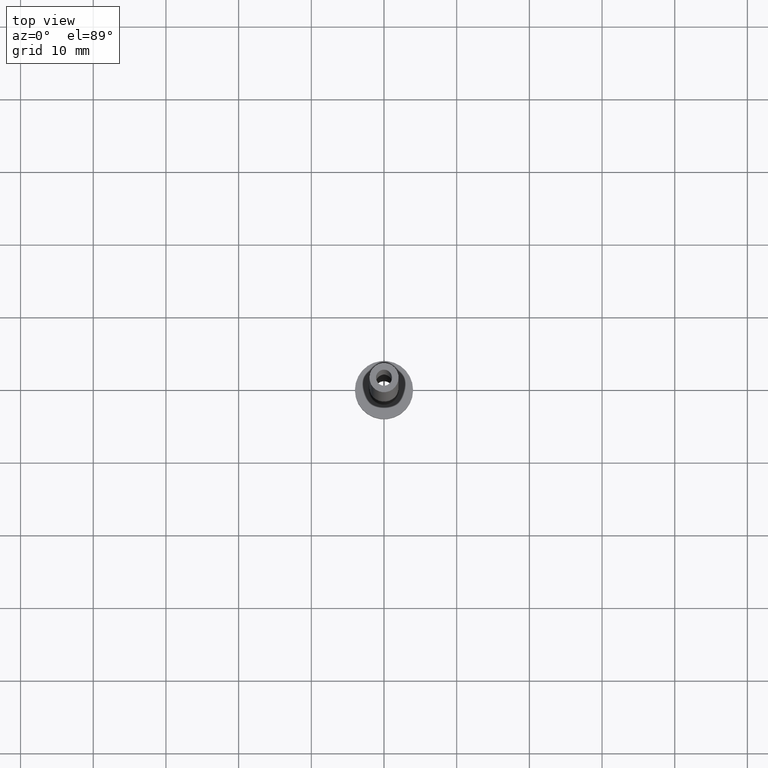
[diagram: clean part render]
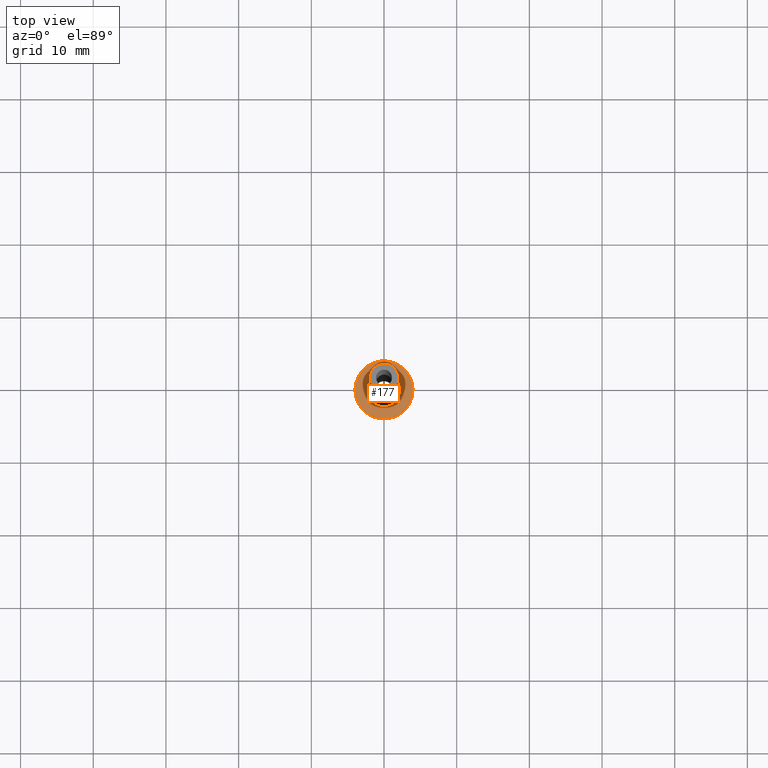
[diagram: same view with one face highlighted and labeled with its STEP entity id]
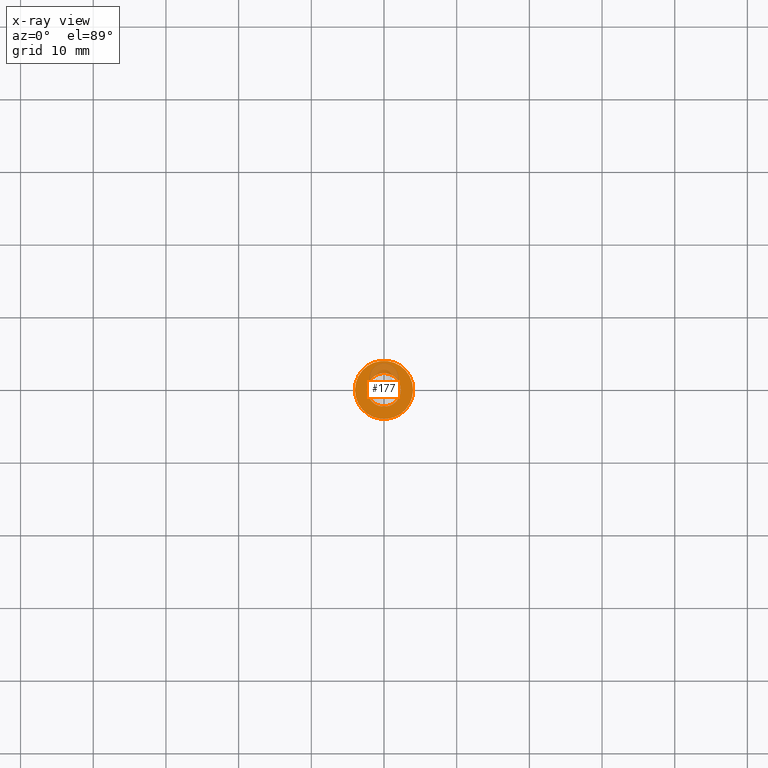
[diagram: x-ray of the same camera — body ghosted, the highlighted face saturated]
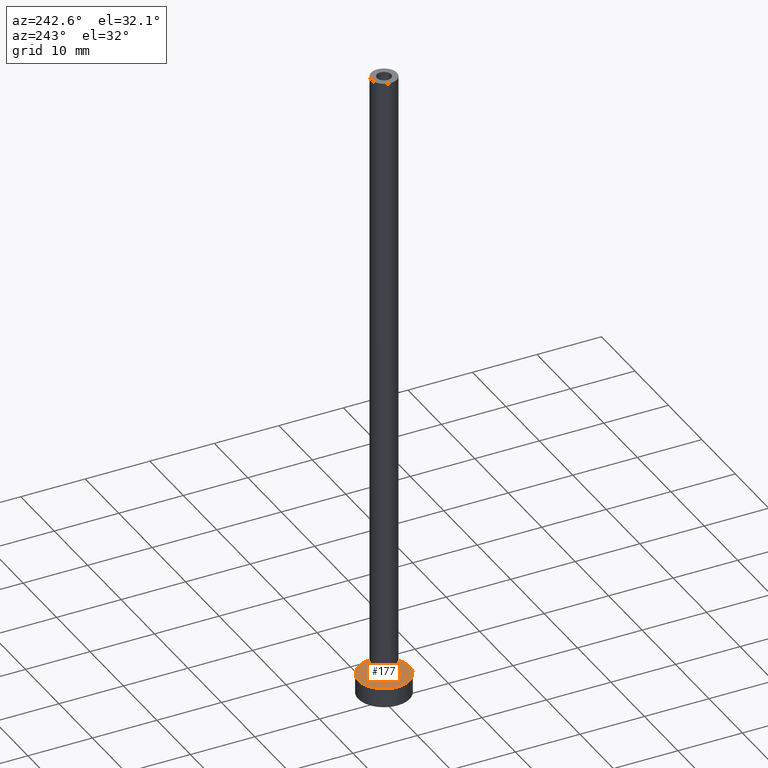
[diagram: same view with one face highlighted and labeled with its STEP entity id]
A machine part, top view. The second image highlights one B-rep face of the part: STEP entity #177.
The next image is the same camera in x-ray: the body ghosted, the highlighted face saturated — about 16% of this face is hidden behind the body in this view.
A second angle (auxiliary view) of the same face is appended — the face is thin or edge-on in the first view.
In plain terms, the highlighted planar face has unit normal (0, 0, 1).
Its self-contained STEP definition (entity closure, byte-faithful):
#14 = CIRCLE ( 'NONE', #70, 4.000000000000000000 ) ;
#20 = CARTESIAN_POINT ( 'NONE',  ( 0.000000000000000000, 0.000000000000000000, 3.000000000000000000 ) ) ;
#51 = DIRECTION ( 'NONE',  ( 0.000000000000000000, 0.000000000000000000, 1.000000000000000000 ) ) ;
#70 = AXIS2_PLACEMENT_3D ( 'NONE', #302, #295, #327 ) ;
#88 = AXIS2_PLACEMENT_3D ( 'NONE', #255, #51, #407 ) ;
#92 = PLANE ( 'NONE',  #162 ) ;
#99 = EDGE_CURVE ( 'NONE', #183, #356, #14, .T. ) ;
#104 = EDGE_LOOP ( 'NONE', ( #409, #410 ) ) ;
#109 = EDGE_CURVE ( 'NONE', #234, #312, #254, .T. ) ;
#116 = AXIS2_PLACEMENT_3D ( 'NONE', #440, #224, #438 ) ;
#120 = DIRECTION ( 'NONE',  ( -0.000000000000000000, -0.000000000000000000, -1.000000000000000000 ) ) ;
#138 = EDGE_CURVE ( 'NONE', #356, #183, #420, .T. ) ;
#147 = EDGE_CURVE ( 'NONE', #312, #234, #215, .T. ) ;
#151 = AXIS2_PLACEMENT_3D ( 'NONE', #156, #120, #380 ) ;
#156 = CARTESIAN_POINT ( 'NONE',  ( 0.000000000000000000, 0.000000000000000000, 3.000000000000000000 ) ) ;
#162 = AXIS2_PLACEMENT_3D ( 'NONE', #20, #308, #196 ) ;
#177 = ADVANCED_FACE ( 'NONE', ( #414, #228 ), #92, .T. ) ;
#183 = VERTEX_POINT ( 'NONE', #268 ) ;
#196 = DIRECTION ( 'NONE',  ( 1.000000000000000000, 0.000000000000000000, -0.000000000000000000 ) ) ;
#213 = CARTESIAN_POINT ( 'NONE',  ( 4.000000000000000000, 4.898587196589412829E-16, 3.000000000000000000 ) ) ;
#215 = CIRCLE ( 'NONE', #151, 2.299999999999999822 ) ;
#224 = DIRECTION ( 'NONE',  ( -0.000000000000000000, -0.000000000000000000, -1.000000000000000000 ) ) ;
#228 = FACE_OUTER_BOUND ( 'NONE', #104, .T. ) ;
#234 = VERTEX_POINT ( 'NONE', #388 ) ;
#254 = CIRCLE ( 'NONE', #116, 2.299999999999999822 ) ;
#255 = CARTESIAN_POINT ( 'NONE',  ( 0.000000000000000000, 0.000000000000000000, 3.000000000000000000 ) ) ;
#268 = CARTESIAN_POINT ( 'NONE',  ( -4.000000000000000000, 0.000000000000000000, 3.000000000000000000 ) ) ;
#282 = ORIENTED_EDGE ( 'NONE', *, *, #147, .T. ) ;
#295 = DIRECTION ( 'NONE',  ( 0.000000000000000000, 0.000000000000000000, 1.000000000000000000 ) ) ;
#302 = CARTESIAN_POINT ( 'NONE',  ( 0.000000000000000000, 0.000000000000000000, 3.000000000000000000 ) ) ;
#308 = DIRECTION ( 'NONE',  ( 0.000000000000000000, 0.000000000000000000, 1.000000000000000000 ) ) ;
#312 = VERTEX_POINT ( 'NONE', #350 ) ;
#319 = EDGE_LOOP ( 'NONE', ( #347, #282 ) ) ;
#327 = DIRECTION ( 'NONE',  ( 1.000000000000000000, 0.000000000000000000, 0.000000000000000000 ) ) ;
#347 = ORIENTED_EDGE ( 'NONE', *, *, #109, .T. ) ;
#350 = CARTESIAN_POINT ( 'NONE',  ( -2.299999999999999822, 2.816687638038912056E-16, 2.999999999999998668 ) ) ;
#356 = VERTEX_POINT ( 'NONE', #213 ) ;
#380 = DIRECTION ( 'NONE',  ( 1.000000000000000000, 0.000000000000000000, 0.000000000000000000 ) ) ;
#388 = CARTESIAN_POINT ( 'NONE',  ( 2.299999999999999822, 0.000000000000000000, 2.999999999999998668 ) ) ;
#407 = DIRECTION ( 'NONE',  ( 1.000000000000000000, 0.000000000000000000, 0.000000000000000000 ) ) ;
#409 = ORIENTED_EDGE ( 'NONE', *, *, #99, .T. ) ;
#410 = ORIENTED_EDGE ( 'NONE', *, *, #138, .T. ) ;
#414 = FACE_BOUND ( 'NONE', #319, .T. ) ;
#420 = CIRCLE ( 'NONE', #88, 4.000000000000000000 ) ;
#438 = DIRECTION ( 'NONE',  ( 1.000000000000000000, 0.000000000000000000, 0.000000000000000000 ) ) ;
#440 = CARTESIAN_POINT ( 'NONE',  ( 0.000000000000000000, 0.000000000000000000, 3.000000000000000000 ) ) ;